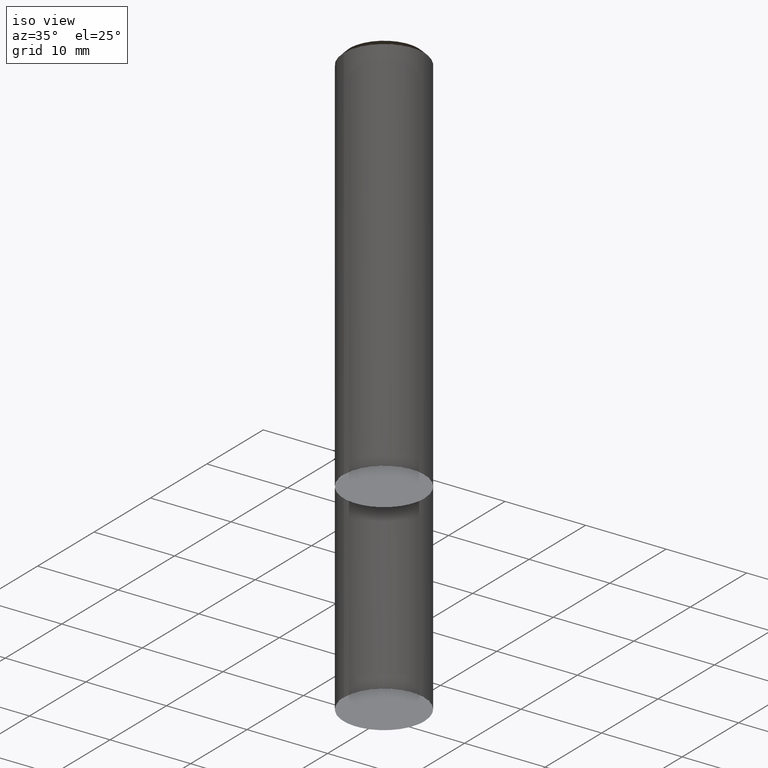
[diagram: clean part render]
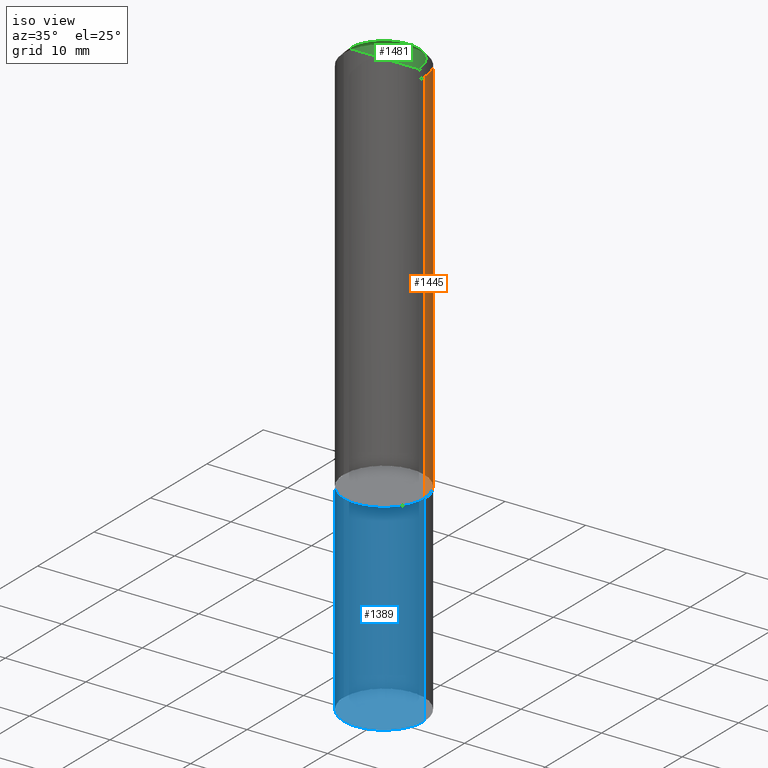
[diagram: same view with three faces highlighted in distinct colors, each labeled with its STEP entity id]
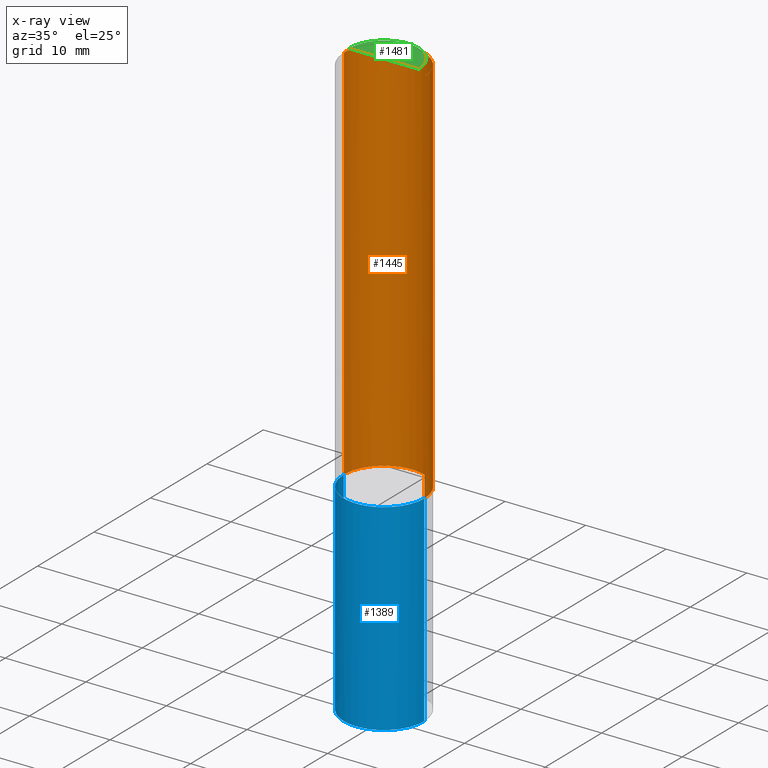
[diagram: x-ray of the same camera — body ghosted, the three highlighted faces saturated]
A machine part, iso view with three faces highlighted in distinct colors.
The next image is the same camera in x-ray (body ghosted, the three faces saturated) — at least one of them is partly hidden behind the body in this view.
Their STEP definitions:

[orange] entity #1445 — the highlighted face is a freeform B-spline surface patch.
#1267=CARTESIAN_POINT('',(5.0,0.0,0.0));
#1268=CARTESIAN_POINT('',(5.0,5.0,0.0));
#1269=CARTESIAN_POINT('',(0.0,5.0,0.0));
#1270=CARTESIAN_POINT('',(-5.0,5.0,0.0));
#1271=CARTESIAN_POINT('',(-5.0,0.0,0.0));
#1278=CARTESIAN_POINT('',(5.0,0.0,47.3));
#1279=CARTESIAN_POINT('',(5.0,5.0,47.3));
#1280=CARTESIAN_POINT('',(0.0,5.0,47.3));
#1281=CARTESIAN_POINT('',(-5.0,5.0,47.3));
#1282=CARTESIAN_POINT('',(-5.0,0.0,47.3));
#1426=(
BOUNDED_SURFACE()
B_SPLINE_SURFACE(1,2,(
(#1267,#1268,#1269,#1270,#1271),
(#1278,#1279,#1280,#1281,#1282)
), .UNSPECIFIED.,.F.,.F.,.F.)
B_SPLINE_SURFACE_WITH_KNOTS((2,2),(3,2,3),(
0.0,1.0),(
0.0,0.5,1.0), .UNSPECIFIED.)
GEOMETRIC_REPRESENTATION_ITEM()
RATIONAL_B_SPLINE_SURFACE(((1.0,0.707106781187,1.0,0.707106781187,1.0),
(1.0,0.707106781187,1.0,0.707106781187,1.0)
))
REPRESENTATION_ITEM('')
SURFACE()
);
#1427=(
BOUNDED_CURVE()
B_SPLINE_CURVE(2,(#1271,#1270,#1269,#1268,#1267),.UNSPECIFIED.,.F.,.F.)
B_SPLINE_CURVE_WITH_KNOTS((3,2,3),
(0.0,0.5,1.0),.UNSPECIFIED.)
CURVE()
GEOMETRIC_REPRESENTATION_ITEM()
RATIONAL_B_SPLINE_CURVE((1.0,0.707106781187,1.0,0.707106781187,1.0))
REPRESENTATION_ITEM('')
);
#1428=(
BOUNDED_CURVE()
B_SPLINE_CURVE(1,(#1267,#1278),.UNSPECIFIED.,.F.,.F.)
B_SPLINE_CURVE_WITH_KNOTS((2,2),
(0.0,1.0),.UNSPECIFIED.)
CURVE()
GEOMETRIC_REPRESENTATION_ITEM()
RATIONAL_B_SPLINE_CURVE((1.0,1.0))
REPRESENTATION_ITEM('')
);
#1429=(
BOUNDED_CURVE()
B_SPLINE_CURVE(2,(#1278,#1279,#1280,#1281,#1282),.UNSPECIFIED.,.F.,.F.)
B_SPLINE_CURVE_WITH_KNOTS((3,2,3),
(0.0,0.5,1.0),.UNSPECIFIED.)
CURVE()
GEOMETRIC_REPRESENTATION_ITEM()
RATIONAL_B_SPLINE_CURVE((1.0,0.707106781187,1.0,0.707106781187,1.0))
REPRESENTATION_ITEM('')
);
#1430=(
BOUNDED_CURVE()
B_SPLINE_CURVE(1,(#1282,#1271),.UNSPECIFIED.,.F.,.F.)
B_SPLINE_CURVE_WITH_KNOTS((2,2),
(0.0,1.0),.UNSPECIFIED.)
CURVE()
GEOMETRIC_REPRESENTATION_ITEM()
RATIONAL_B_SPLINE_CURVE((1.0,1.0))
REPRESENTATION_ITEM('')
);
#1431=VERTEX_POINT('',#1267);
#1432=VERTEX_POINT('',#1271);
#1433=VERTEX_POINT('',#1278);
#1434=VERTEX_POINT('',#1282);
#1435=EDGE_CURVE('',#1432,#1431,#1427,.T.);
#1436=EDGE_CURVE('',#1431,#1433,#1428,.T.);
#1437=EDGE_CURVE('',#1433,#1434,#1429,.T.);
#1438=EDGE_CURVE('',#1434,#1432,#1430,.T.);
#1439=ORIENTED_EDGE('',*,*,#1435,.T.);
#1440=ORIENTED_EDGE('',*,*,#1436,.T.);
#1441=ORIENTED_EDGE('',*,*,#1437,.T.);
#1442=ORIENTED_EDGE('',*,*,#1438,.T.);
#1443=EDGE_LOOP('',(#1439,#1440,#1441,#1442));
#1444=FACE_OUTER_BOUND('',#1443,.T.);
#1445=ADVANCED_FACE('',(#1444),#1426,.T.);

[blue] entity #1389 — the highlighted face is a freeform B-spline surface patch.
#109=CARTESIAN_POINT('',(0.0,-5.0,-25.0));
#410=CARTESIAN_POINT('',(5.0,0.0,-25.0));
#1012=CARTESIAN_POINT('',(-5.0,0.0,-25.0));
#1267=CARTESIAN_POINT('',(5.0,0.0,0.0));
#1271=CARTESIAN_POINT('',(-5.0,0.0,0.0));
#1273=CARTESIAN_POINT('',(-5.0,-5.0,-25.0));
#1274=CARTESIAN_POINT('',(5.0,-5.0,-25.0));
#1275=CARTESIAN_POINT('',(-5.0,-5.0,0.0));
#1276=CARTESIAN_POINT('',(0.0,-5.0,0.0));
#1277=CARTESIAN_POINT('',(5.0,-5.0,0.0));
#1370=(
BOUNDED_SURFACE()
B_SPLINE_SURFACE(1,2,(
(#1012,#1273,#109,#1274,#410),
(#1271,#1275,#1276,#1277,#1267)
), .UNSPECIFIED.,.F.,.F.,.F.)
B_SPLINE_SURFACE_WITH_KNOTS((2,2),(3,2,3),(
0.0,1.0),(
0.0,0.5,1.0), .UNSPECIFIED.)
GEOMETRIC_REPRESENTATION_ITEM()
RATIONAL_B_SPLINE_SURFACE(((1.0,0.707106781187,1.0,0.707106781187,1.0),
(1.0,0.707106781187,1.0,0.707106781187,1.0)
))
REPRESENTATION_ITEM('')
SURFACE()
);
#1371=(
BOUNDED_CURVE()
B_SPLINE_CURVE(2,(#410,#1274,#109,#1273,#1012),.UNSPECIFIED.,.F.,.F.)
B_SPLINE_CURVE_WITH_KNOTS((3,2,3),
(0.0,0.5,1.0),.UNSPECIFIED.)
CURVE()
GEOMETRIC_REPRESENTATION_ITEM()
RATIONAL_B_SPLINE_CURVE((1.0,0.707106781187,1.0,0.707106781187,1.0))
REPRESENTATION_ITEM('')
);
#1372=(
BOUNDED_CURVE()
B_SPLINE_CURVE(1,(#1012,#1271),.UNSPECIFIED.,.F.,.F.)
B_SPLINE_CURVE_WITH_KNOTS((2,2),
(0.0,1.0),.UNSPECIFIED.)
CURVE()
GEOMETRIC_REPRESENTATION_ITEM()
RATIONAL_B_SPLINE_CURVE((1.0,1.0))
REPRESENTATION_ITEM('')
);
#1373=(
BOUNDED_CURVE()
B_SPLINE_CURVE(2,(#1271,#1275,#1276,#1277,#1267),.UNSPECIFIED.,.F.,.F.)
B_SPLINE_CURVE_WITH_KNOTS((3,2,3),
(0.0,0.5,1.0),.UNSPECIFIED.)
CURVE()
GEOMETRIC_REPRESENTATION_ITEM()
RATIONAL_B_SPLINE_CURVE((1.0,0.707106781187,1.0,0.707106781187,1.0))
REPRESENTATION_ITEM('')
);
#1374=(
BOUNDED_CURVE()
B_SPLINE_CURVE(1,(#1267,#410),.UNSPECIFIED.,.F.,.F.)
B_SPLINE_CURVE_WITH_KNOTS((2,2),
(0.0,1.0),.UNSPECIFIED.)
CURVE()
GEOMETRIC_REPRESENTATION_ITEM()
RATIONAL_B_SPLINE_CURVE((1.0,1.0))
REPRESENTATION_ITEM('')
);
#1375=VERTEX_POINT('',#410);
#1376=VERTEX_POINT('',#1012);
#1377=VERTEX_POINT('',#1267);
#1378=VERTEX_POINT('',#1271);
#1379=EDGE_CURVE('',#1375,#1376,#1371,.T.);
#1380=EDGE_CURVE('',#1376,#1378,#1372,.T.);
#1381=EDGE_CURVE('',#1378,#1377,#1373,.T.);
#1382=EDGE_CURVE('',#1377,#1375,#1374,.T.);
#1383=ORIENTED_EDGE('',*,*,#1379,.T.);
#1384=ORIENTED_EDGE('',*,*,#1380,.T.);
#1385=ORIENTED_EDGE('',*,*,#1381,.T.);
#1386=ORIENTED_EDGE('',*,*,#1382,.T.);
#1387=EDGE_LOOP('',(#1383,#1384,#1385,#1386));
#1388=FACE_OUTER_BOUND('',#1387,.T.);
#1389=ADVANCED_FACE('',(#1388),#1370,.T.);

[green] entity #1481 — the highlighted face is a freeform B-spline surface patch.
#1283=CARTESIAN_POINT('',(4.3,0.0,48.0));
#1284=CARTESIAN_POINT('',(4.3,4.3,48.0));
#1285=CARTESIAN_POINT('',(0.0,4.3,48.0));
#1286=CARTESIAN_POINT('',(-4.3,4.3,48.0));
#1287=CARTESIAN_POINT('',(-4.3,0.0,48.0));
#1288=CARTESIAN_POINT('',(0.0,0.0,48.0));
#1466=(
BOUNDED_SURFACE()
B_SPLINE_SURFACE(1,2,(
(#1283,#1284,#1285,#1286,#1287),
(#1288,#1288,#1288,#1288,#1288)
), .UNSPECIFIED.,.F.,.F.,.F.)
B_SPLINE_SURFACE_WITH_KNOTS((2,2),(3,2,3),(
0.0,1.0),(
0.0,0.5,1.0), .UNSPECIFIED.)
GEOMETRIC_REPRESENTATION_ITEM()
RATIONAL_B_SPLINE_SURFACE(((1.0,0.707106781187,1.0,0.707106781187,1.0),
(1.0,0.707106781187,1.0,0.707106781187,1.0)
))
REPRESENTATION_ITEM('')
SURFACE()
);
#1467=(
BOUNDED_CURVE()
B_SPLINE_CURVE(2,(#1287,#1286,#1285,#1284,#1283),.UNSPECIFIED.,.F.,.F.)
B_SPLINE_CURVE_WITH_KNOTS((3,2,3),
(0.0,0.5,1.0),.UNSPECIFIED.)
CURVE()
GEOMETRIC_REPRESENTATION_ITEM()
RATIONAL_B_SPLINE_CURVE((1.0,0.707106781187,1.0,0.707106781187,1.0))
REPRESENTATION_ITEM('')
);
#1468=(
BOUNDED_CURVE()
B_SPLINE_CURVE(1,(#1283,#1288),.UNSPECIFIED.,.F.,.F.)
B_SPLINE_CURVE_WITH_KNOTS((2,2),
(0.0,1.0),.UNSPECIFIED.)
CURVE()
GEOMETRIC_REPRESENTATION_ITEM()
RATIONAL_B_SPLINE_CURVE((1.0,1.0))
REPRESENTATION_ITEM('')
);
#1469=(
BOUNDED_CURVE()
B_SPLINE_CURVE(1,(#1288,#1287),.UNSPECIFIED.,.F.,.F.)
B_SPLINE_CURVE_WITH_KNOTS((2,2),
(0.0,1.0),.UNSPECIFIED.)
CURVE()
GEOMETRIC_REPRESENTATION_ITEM()
RATIONAL_B_SPLINE_CURVE((1.0,1.0))
REPRESENTATION_ITEM('')
);
#1470=VERTEX_POINT('',#1283);
#1471=VERTEX_POINT('',#1287);
#1472=VERTEX_POINT('',#1288);
#1473=EDGE_CURVE('',#1471,#1470,#1467,.T.);
#1474=EDGE_CURVE('',#1470,#1472,#1468,.T.);
#1475=EDGE_CURVE('',#1472,#1471,#1469,.T.);
#1476=ORIENTED_EDGE('',*,*,#1473,.T.);
#1477=ORIENTED_EDGE('',*,*,#1474,.T.);
#1478=ORIENTED_EDGE('',*,*,#1475,.T.);
#1479=EDGE_LOOP('',(#1476,#1477,#1478));
#1480=FACE_OUTER_BOUND('',#1479,.T.);
#1481=ADVANCED_FACE('',(#1480),#1466,.T.);